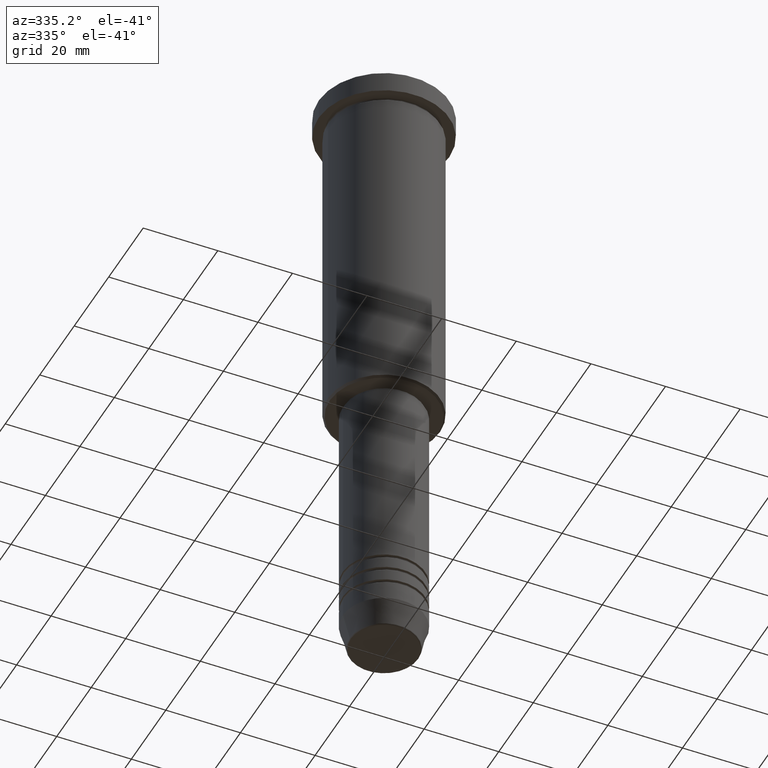
[diagram: clean part render]
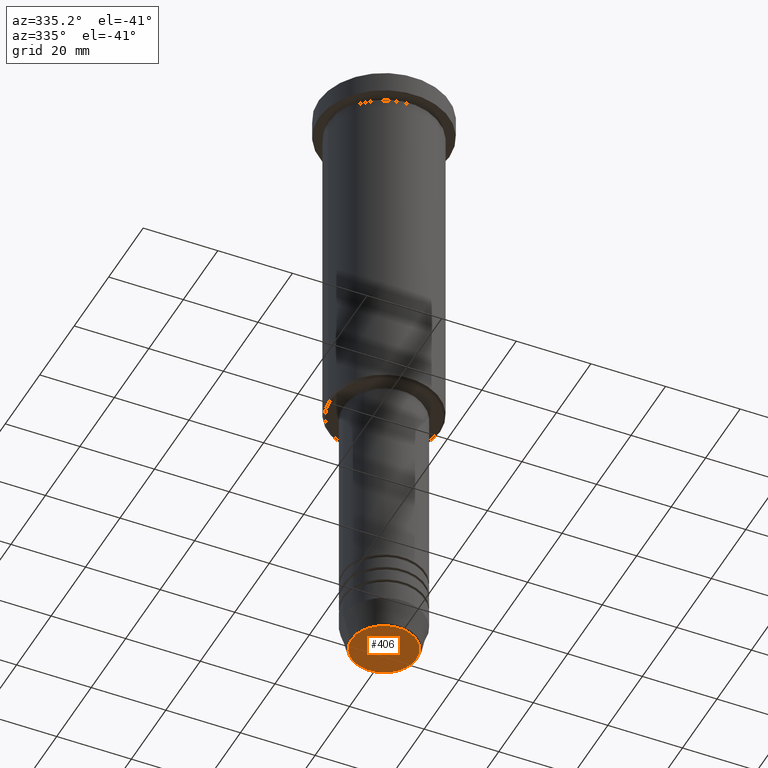
[diagram: same view with one face highlighted and labeled with its STEP entity id]
A machine part, auxiliary view. The second image highlights one B-rep face of the part: STEP entity #406.
In plain terms, the highlighted planar face has unit normal (0, -0, 1).
Its self-contained STEP definition (entity closure, byte-faithful):
#25 = AXIS2_PLACEMENT_3D ( 'NONE', #1175, #370, #276 ) ;
#96 = EDGE_CURVE ( 'NONE', #619, #522, #673, .T. ) ;
#137 = DIRECTION ( 'NONE',  ( 1.000000000000000000, 0.000000000000000000, 0.000000000000000000 ) ) ;
#183 = CARTESIAN_POINT ( 'NONE',  ( -8.740692158992656502, 1.099999016768739653E-15, -170.9999999999999716 ) ) ;
#242 = FACE_OUTER_BOUND ( 'NONE', #325, .T. ) ;
#276 = DIRECTION ( 'NONE',  ( 1.000000000000000000, 0.000000000000000000, 0.000000000000000000 ) ) ;
#309 = AXIS2_PLACEMENT_3D ( 'NONE', #1026, #771, #322 ) ;
#322 = DIRECTION ( 'NONE',  ( 1.000000000000000000, 0.000000000000000000, 0.000000000000000000 ) ) ;
#325 = EDGE_LOOP ( 'NONE', ( #397, #848 ) ) ;
#370 = DIRECTION ( 'NONE',  ( 0.000000000000000000, 0.000000000000000000, -1.000000000000000000 ) ) ;
#397 = ORIENTED_EDGE ( 'NONE', *, *, #96, .T. ) ;
#406 = ADVANCED_FACE ( 'NONE', ( #242 ), #874, .F. ) ;
#500 = EDGE_CURVE ( 'NONE', #522, #619, #1097, .T. ) ;
#511 = AXIS2_PLACEMENT_3D ( 'NONE', #603, #962, #137 ) ;
#522 = VERTEX_POINT ( 'NONE', #183 ) ;
#595 = CARTESIAN_POINT ( 'NONE',  ( 8.740692158992656502, 0.000000000000000000, -170.9999999999999716 ) ) ;
#603 = CARTESIAN_POINT ( 'NONE',  ( 0.000000000000000000, 0.000000000000000000, -170.9999999999999716 ) ) ;
#619 = VERTEX_POINT ( 'NONE', #595 ) ;
#673 = CIRCLE ( 'NONE', #309, 8.740692158992656502 ) ;
#771 = DIRECTION ( 'NONE',  ( 0.000000000000000000, 0.000000000000000000, -1.000000000000000000 ) ) ;
#848 = ORIENTED_EDGE ( 'NONE', *, *, #500, .T. ) ;
#874 = PLANE ( 'NONE',  #511 ) ;
#962 = DIRECTION ( 'NONE',  ( 0.000000000000000000, -0.000000000000000000, 1.000000000000000000 ) ) ;
#1026 = CARTESIAN_POINT ( 'NONE',  ( 0.000000000000000000, 0.000000000000000000, -170.9999999999999716 ) ) ;
#1097 = CIRCLE ( 'NONE', #25, 8.740692158992656502 ) ;
#1175 = CARTESIAN_POINT ( 'NONE',  ( 0.000000000000000000, 0.000000000000000000, -170.9999999999999716 ) ) ;